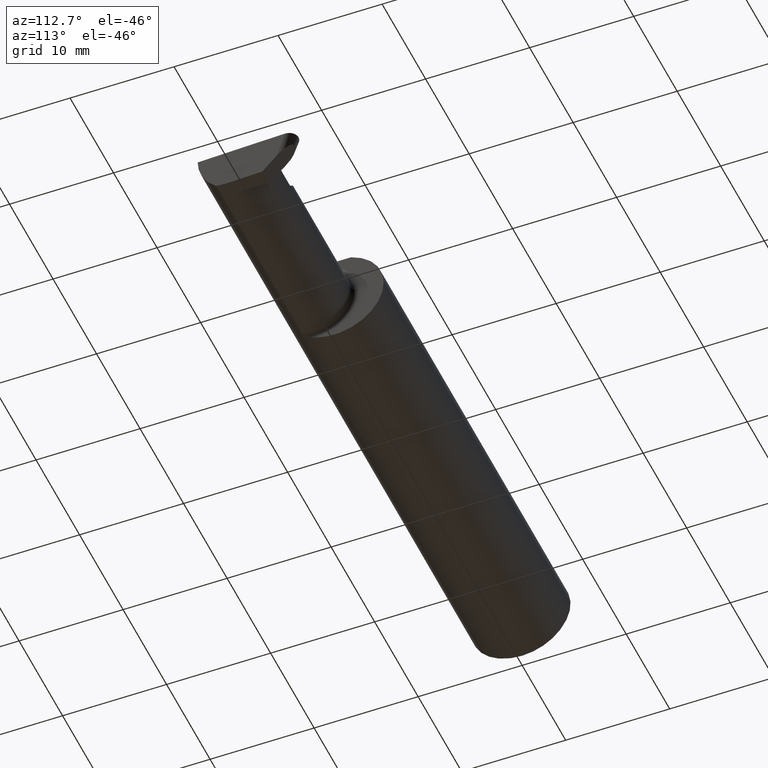
[diagram: clean part render]
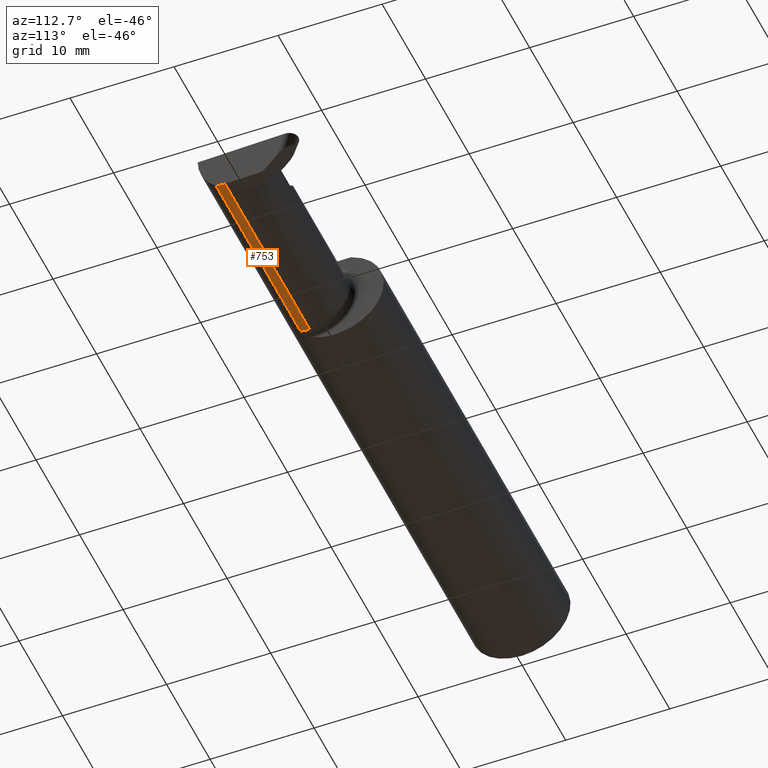
[diagram: same view with one face highlighted and labeled with its STEP entity id]
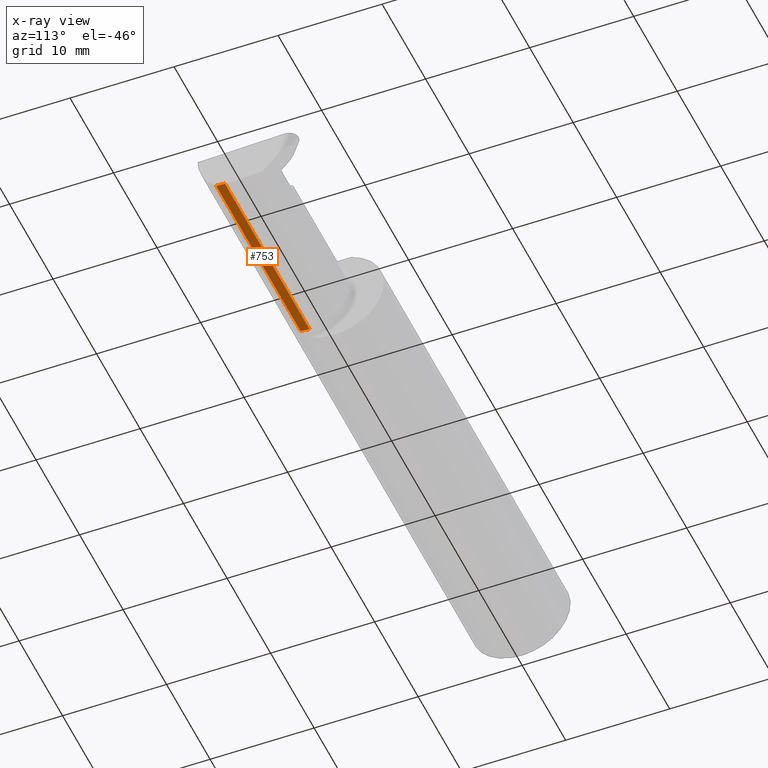
[diagram: x-ray of the same camera — body ghosted, the highlighted face saturated]
A machine part, auxiliary view. The second image highlights one B-rep face of the part: STEP entity #753.
The next image is the same camera in x-ray: the body ghosted, the highlighted face saturated — about 0% of this face is hidden behind the body in this view.
In plain terms, the highlighted cylindrical surface (partial cylindrical patch) has radius 3.81 mm, axis along (-1, -0, -0).
Its self-contained STEP definition (entity closure, byte-faithful):
#30 = ORIENTED_EDGE ( 'NONE', *, *, #664, .F. ) ;
#31 = DIRECTION ( 'NONE',  ( -1.000000000000000000, -0.000000000000000000, -0.000000000000000000 ) ) ;
#57 = ORIENTED_EDGE ( 'NONE', *, *, #473, .F. ) ;
#84 = CARTESIAN_POINT ( 'NONE',  ( 2.733184360054361939, -0.08335000000000014619, -0.1500000000000000500 ) ) ;
#119 = CARTESIAN_POINT ( 'NONE',  ( 2.488868656527756684, -0.09477667630339424443, -0.1500000000000000222 ) ) ;
#130 = CARTESIAN_POINT ( 'NONE',  ( 2.435477556824171330, -0.08334999999999999354, -0.1500000000000000222 ) ) ;
#151 = VECTOR ( 'NONE', #769, 39.37007874015748143 ) ;
#165 = EDGE_CURVE ( 'NONE', #363, #794, #187, .T. ) ;
#166 = CYLINDRICAL_SURFACE ( 'NONE', #566, 0.1499999999999999944 ) ;
#173 = VECTOR ( 'NONE', #328, 39.37007874015748143 ) ;
#176 = VECTOR ( 'NONE', #616, 39.37007874015748143 ) ;
#187 = LINE ( 'NONE', #193, #176 ) ;
#193 = CARTESIAN_POINT ( 'NONE',  ( 2.077422719999999945, -0.1172600179964006784, -0.1461167706989303650 ) ) ;
#221 = EDGE_CURVE ( 'NONE', #434, #582, #573, .T. ) ;
#246 = CARTESIAN_POINT ( 'NONE',  ( 2.488494925208532660, -0.1061291577212409298, -0.1486999626928446339 ) ) ;
#250 = CIRCLE ( 'NONE', #810, 0.1499999999999999944 ) ;
#263 =( BOUNDED_CURVE ( )  B_SPLINE_CURVE ( 3, ( #292, #246, #119, #414 ),
 .UNSPECIFIED., .F., .F. ) 
 B_SPLINE_CURVE_WITH_KNOTS ( ( 4, 4 ),
 ( 0.8789888184544294436, 1.107026853503872754 ),
 .UNSPECIFIED. ) 
 CURVE ( )  GEOMETRIC_REPRESENTATION_ITEM ( )  RATIONAL_B_SPLINE_CURVE ( ( 1.000000000000000000, 0.9956712472009929815, 0.9956712472009929815, 1.000000000000000000 ) ) 
 REPRESENTATION_ITEM ( '' )  );
#292 = CARTESIAN_POINT ( 'NONE',  ( 2.488151344270815635, -0.1172600179964006784, -0.1461167706989303650 ) ) ;
#322 = EDGE_CURVE ( 'NONE', #582, #554, #521, .T. ) ;
#327 = DIRECTION ( 'NONE',  ( -1.000000000000000000, -0.000000000000000000, -0.000000000000000000 ) ) ;
#328 = DIRECTION ( 'NONE',  ( -1.000000000000000000, -0.000000000000000000, -0.000000000000000000 ) ) ;
#332 = CARTESIAN_POINT ( 'NONE',  ( 2.488151344270815635, -0.1172600179964006784, -0.1461167706989303650 ) ) ;
#334 = FACE_OUTER_BOUND ( 'NONE', #449, .T. ) ;
#363 = VERTEX_POINT ( 'NONE', #332 ) ;
#414 = CARTESIAN_POINT ( 'NONE',  ( 2.489267684857003893, -0.08335000000000014619, -0.1500000000000000500 ) ) ;
#434 = VERTEX_POINT ( 'NONE', #533 ) ;
#449 = EDGE_LOOP ( 'NONE', ( #802, #502, #57, #577, #30 ) ) ;
#473 = EDGE_CURVE ( 'NONE', #363, #434, #263, .T. ) ;
#502 = ORIENTED_EDGE ( 'NONE', *, *, #221, .F. ) ;
#504 = CARTESIAN_POINT ( 'NONE',  ( 1.724999999999999867, -0.08334999999999997966, -0.1499999999999999944 ) ) ;
#518 = CARTESIAN_POINT ( 'NONE',  ( 1.699999999999999956, -0.08334999999999997966, -0.1499999999999999944 ) ) ;
#521 = LINE ( 'NONE', #518, #173 ) ;
#533 = CARTESIAN_POINT ( 'NONE',  ( 2.489267684857003893, -0.08335000000000014619, -0.1500000000000000500 ) ) ;
#554 = VERTEX_POINT ( 'NONE', #504 ) ;
#566 = AXIS2_PLACEMENT_3D ( 'NONE', #599, #31, #603 ) ;
#573 = LINE ( 'NONE', #84, #151 ) ;
#577 = ORIENTED_EDGE ( 'NONE', *, *, #165, .T. ) ;
#582 = VERTEX_POINT ( 'NONE', #130 ) ;
#599 = CARTESIAN_POINT ( 'NONE',  ( 1.699999999999999956, -0.08334999999999999354, 0.000000000000000000 ) ) ;
#603 = DIRECTION ( 'NONE',  ( 0.000000000000000000, 0.000000000000000000, 1.000000000000000000 ) ) ;
#616 = DIRECTION ( 'NONE',  ( -1.000000000000000000, -0.000000000000000000, -0.000000000000000000 ) ) ;
#650 = CARTESIAN_POINT ( 'NONE',  ( 1.724999999999999867, -0.08334999999999999354, 0.000000000000000000 ) ) ;
#657 = DIRECTION ( 'NONE',  ( 0.000000000000000000, 0.000000000000000000, 1.000000000000000000 ) ) ;
#664 = EDGE_CURVE ( 'NONE', #554, #794, #250, .T. ) ;
#731 = CARTESIAN_POINT ( 'NONE',  ( 1.724999999999999867, -0.1172600179964006784, -0.1461167706989303650 ) ) ;
#753 = ADVANCED_FACE ( 'NONE', ( #334 ), #166, .T. ) ;
#769 = DIRECTION ( 'NONE',  ( -1.000000000000000000, -0.000000000000000000, -0.000000000000000000 ) ) ;
#794 = VERTEX_POINT ( 'NONE', #731 ) ;
#802 = ORIENTED_EDGE ( 'NONE', *, *, #322, .F. ) ;
#810 = AXIS2_PLACEMENT_3D ( 'NONE', #650, #327, #657 ) ;